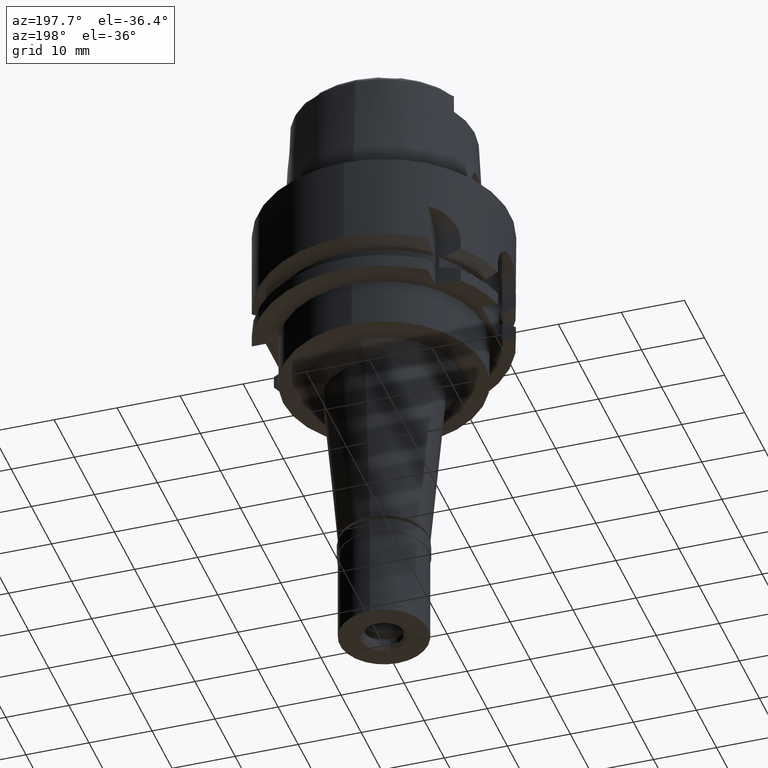
[diagram: clean part render]
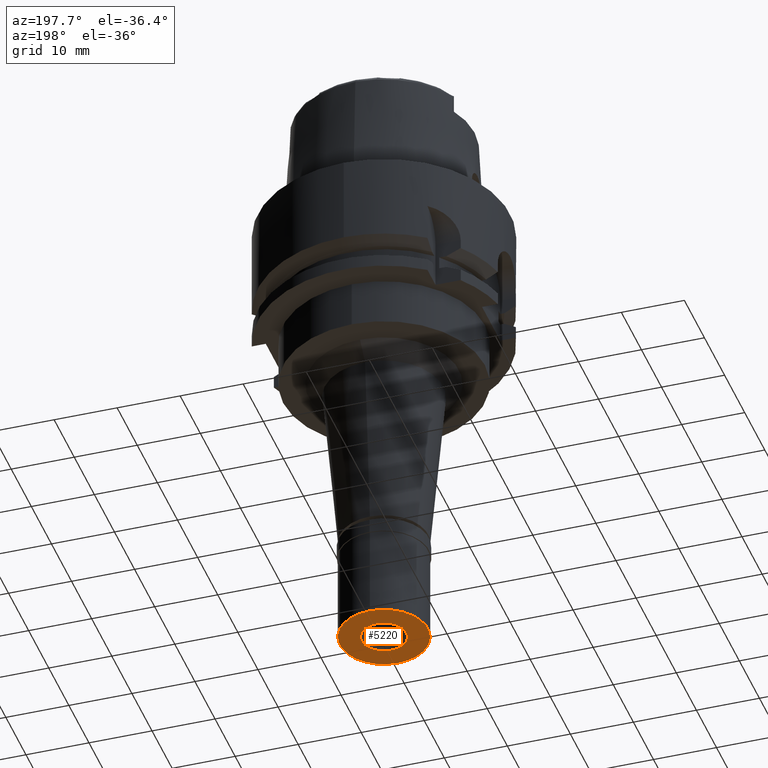
[diagram: same view with one face highlighted and labeled with its STEP entity id]
A machine part, auxiliary view. The second image highlights one B-rep face of the part: STEP entity #5220.
In plain terms, the highlighted planar face has unit normal (0, 0, 1).
Its self-contained STEP definition (entity closure, byte-faithful):
#110 = EDGE_LOOP ( 'NONE', ( #3939, #1950 ) ) ;
#395 = CARTESIAN_POINT ( 'NONE',  ( 0.0000000000000000000, 0.0000000000000000000, -17.00000000000000000 ) ) ;
#515 = CARTESIAN_POINT ( 'NONE',  ( 0.0000000000000000000, 7.000000000000000000, -17.00000000000000000 ) ) ;
#526 = DIRECTION ( 'NONE',  ( 0.0000000000000000000, 0.0000000000000000000, -1.000000000000000000 ) ) ;
#1031 = CARTESIAN_POINT ( 'NONE',  ( 0.0000000000000000000, 0.0000000000000000000, -17.00000000000000000 ) ) ;
#1214 = CIRCLE ( 'NONE', #4959, 3.550000000000000266 ) ;
#1343 = ORIENTED_EDGE ( 'NONE', *, *, #4082, .F. ) ;
#1345 = FACE_OUTER_BOUND ( 'NONE', #2555, .T. ) ;
#1708 = VERTEX_POINT ( 'NONE', #5234 ) ;
#1746 = FACE_BOUND ( 'NONE', #110, .T. ) ;
#1950 = ORIENTED_EDGE ( 'NONE', *, *, #3651, .F. ) ;
#2094 = CARTESIAN_POINT ( 'NONE',  ( 0.0000000000000000000, 3.550000000000000266, -17.00000000000000000 ) ) ;
#2135 = DIRECTION ( 'NONE',  ( 0.0000000000000000000, -1.000000000000000000, 0.0000000000000000000 ) ) ;
#2326 = AXIS2_PLACEMENT_3D ( 'NONE', #395, #4397, #2731 ) ;
#2505 = VERTEX_POINT ( 'NONE', #515 ) ;
#2555 = EDGE_LOOP ( 'NONE', ( #3528, #1343 ) ) ;
#2599 = CARTESIAN_POINT ( 'NONE',  ( 0.0000000000000000000, 0.0000000000000000000, -17.00000000000000000 ) ) ;
#2654 = DIRECTION ( 'NONE',  ( 0.0000000000000000000, 0.0000000000000000000, -1.000000000000000000 ) ) ;
#2731 = DIRECTION ( 'NONE',  ( 0.0000000000000000000, -1.000000000000000000, 0.0000000000000000000 ) ) ;
#2789 = DIRECTION ( 'NONE',  ( 0.0000000000000000000, 1.000000000000000000, 0.0000000000000000000 ) ) ;
#2971 = VERTEX_POINT ( 'NONE', #2094 ) ;
#3002 = DIRECTION ( 'NONE',  ( 1.000000000000000000, 0.0000000000000000000, 0.0000000000000000000 ) ) ;
#3084 = PLANE ( 'NONE',  #3589 ) ;
#3121 = CARTESIAN_POINT ( 'NONE',  ( 0.0000000000000000000, 0.0000000000000000000, -17.00000000000000000 ) ) ;
#3221 = VERTEX_POINT ( 'NONE', #3701 ) ;
#3528 = ORIENTED_EDGE ( 'NONE', *, *, #4826, .F. ) ;
#3569 = DIRECTION ( 'NONE',  ( 0.0000000000000000000, 1.000000000000000000, 0.0000000000000000000 ) ) ;
#3589 = AXIS2_PLACEMENT_3D ( 'NONE', #4218, #5037, #3002 ) ;
#3651 = EDGE_CURVE ( 'NONE', #3221, #2971, #4302, .T. ) ;
#3701 = CARTESIAN_POINT ( 'NONE',  ( 0.0000000000000000000, -3.550000000000000266, -17.00000000000000000 ) ) ;
#3925 = EDGE_CURVE ( 'NONE', #2971, #3221, #1214, .T. ) ;
#3939 = ORIENTED_EDGE ( 'NONE', *, *, #3925, .F. ) ;
#4008 = AXIS2_PLACEMENT_3D ( 'NONE', #3121, #5253, #2789 ) ;
#4039 = AXIS2_PLACEMENT_3D ( 'NONE', #2599, #526, #2135 ) ;
#4082 = EDGE_CURVE ( 'NONE', #1708, #2505, #4799, .T. ) ;
#4218 = CARTESIAN_POINT ( 'NONE',  ( 0.0000000000000000000, 0.0000000000000000000, -17.00000000000000000 ) ) ;
#4302 = CIRCLE ( 'NONE', #4039, 3.550000000000000266 ) ;
#4397 = DIRECTION ( 'NONE',  ( 0.0000000000000000000, 0.0000000000000000000, 1.000000000000000000 ) ) ;
#4799 = CIRCLE ( 'NONE', #2326, 7.000000000000000000 ) ;
#4826 = EDGE_CURVE ( 'NONE', #2505, #1708, #4930, .T. ) ;
#4930 = CIRCLE ( 'NONE', #4008, 7.000000000000000000 ) ;
#4959 = AXIS2_PLACEMENT_3D ( 'NONE', #1031, #2654, #3569 ) ;
#5037 = DIRECTION ( 'NONE',  ( 0.0000000000000000000, 0.0000000000000000000, 1.000000000000000000 ) ) ;
#5220 = ADVANCED_FACE ( 'NONE', ( #1345, #1746 ), #3084, .F. ) ;
#5234 = CARTESIAN_POINT ( 'NONE',  ( 0.0000000000000000000, -7.000000000000000000, -17.00000000000000000 ) ) ;
#5253 = DIRECTION ( 'NONE',  ( 0.0000000000000000000, 0.0000000000000000000, 1.000000000000000000 ) ) ;